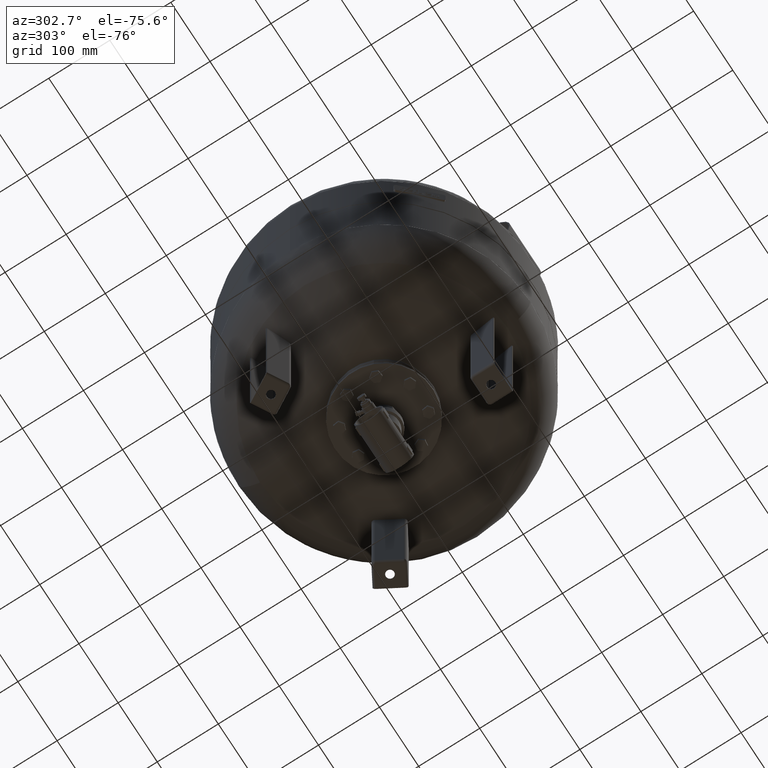
[diagram: clean part render]
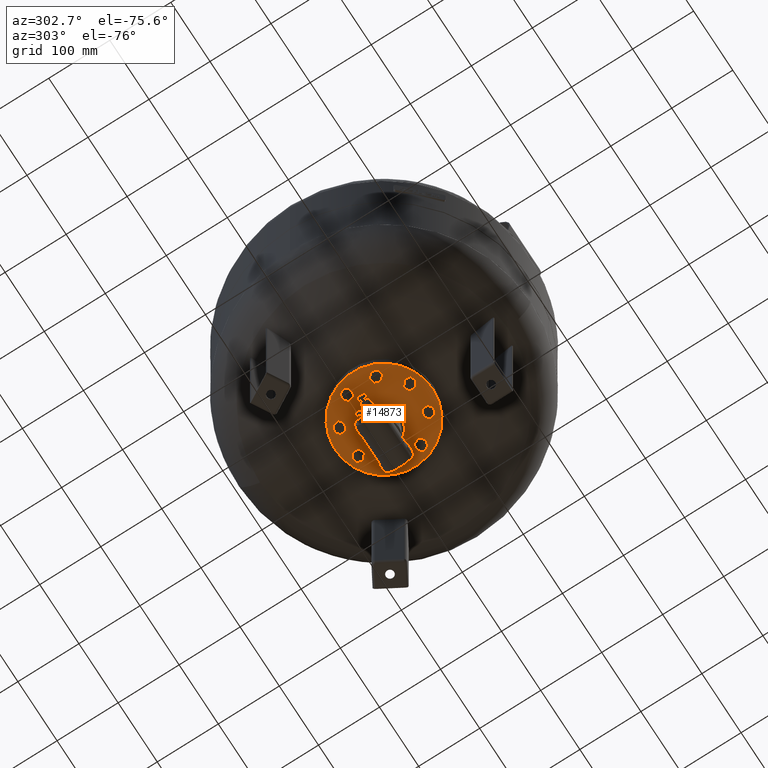
[diagram: same view with one face highlighted and labeled with its STEP entity id]
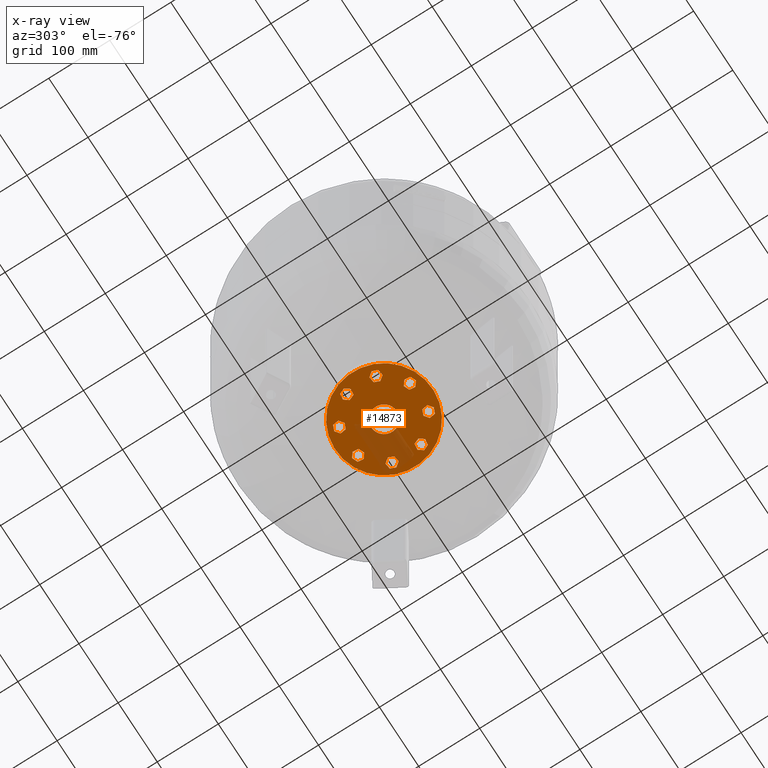
[diagram: x-ray of the same camera — body ghosted, the highlighted face saturated]
A machine part, auxiliary view. The second image highlights one B-rep face of the part: STEP entity #14873.
The next image is the same camera in x-ray: the body ghosted, the highlighted face saturated — about 16% of this face is hidden behind the body in this view.
In plain terms, the highlighted planar face has unit normal (0, 0, 1).
Its self-contained STEP definition (entity closure, byte-faithful):
#10969=CARTESIAN_POINT('',(-73.910362600902943,-30.614674589207187,177.0));
#10970=VERTEX_POINT('',#10969);
#10979=CARTESIAN_POINT('',(73.910362600902943,30.614674589207169,177.0));
#10980=VERTEX_POINT('',#10979);
#10981=CARTESIAN_POINT('',(1.874608E-015,-4.525704E-015,177.0));
#10982=DIRECTION('',(0.0,0.0,1.0));
#10983=DIRECTION('',(-0.923879532511287,-0.382683432365090,0.0));
#10984=AXIS2_PLACEMENT_3D('',#10981,#10982,#10983);
#10985=CIRCLE('',#10984,80.0);
#10986=EDGE_CURVE('',#10970,#10980,#10985,.T.);
#11013=CARTESIAN_POINT('',(-19.586246089239278,-8.112888766139911,177.0));
#11014=VERTEX_POINT('',#11013);
#11030=CARTESIAN_POINT('',(19.586246089239285,8.112888766139898,177.0));
#11031=VERTEX_POINT('',#11030);
#11038=CARTESIAN_POINT('',(1.874608E-015,-4.525704E-015,177.0));
#11039=DIRECTION('',(0.0,0.0,1.0));
#11040=DIRECTION('',(-0.923879532511287,-0.382683432365090,0.0));
#11041=AXIS2_PLACEMENT_3D('',#11038,#11039,#11040);
#11042=CIRCLE('',#11041,21.200000000000003);
#11043=EDGE_CURVE('',#11014,#11031,#11042,.T.);
#12821=CARTESIAN_POINT('',(-16.589030289543945,-52.118973583388282,177.0));
#12822=VERTEX_POINT('',#12821);
#12823=CARTESIAN_POINT('',(-25.123463838250792,-48.583895460341978,177.0));
#12824=VERTEX_POINT('',#12823);
#12825=CARTESIAN_POINT('',(-16.589030289543945,-52.118973583388282,177.0));
#12826=DIRECTION('',(-0.923879532511287,0.382683432365088,0.0));
#12827=VECTOR('',#12826,9.237604307034022);
#12828=LINE('',#12825,#12827);
#12829=EDGE_CURVE('',#12822,#12824,#12828,.T.);
#12861=CARTESIAN_POINT('',(-15.383280974111251,-61.277548905001737,177.0));
#12862=VERTEX_POINT('',#12861);
#12863=CARTESIAN_POINT('',(-15.383280974111251,-61.277548905001737,177.0));
#12864=DIRECTION('',(-0.130526192220051,0.991444861373810,0.0));
#12865=VECTOR('',#12864,9.237604307034017);
#12866=LINE('',#12863,#12865);
#12867=EDGE_CURVE('',#12862,#12822,#12866,.T.);
#12892=CARTESIAN_POINT('',(-22.711965207385386,-66.901046103568888,177.0));
#12893=VERTEX_POINT('',#12892);
#12894=CARTESIAN_POINT('',(-22.711965207385386,-66.901046103568888,177.0));
#12895=DIRECTION('',(0.793353340291235,0.608761429008721,0.0));
#12896=VECTOR('',#12895,9.237604307034021);
#12897=LINE('',#12894,#12896);
#12898=EDGE_CURVE('',#12893,#12862,#12897,.T.);
#12923=CARTESIAN_POINT('',(-31.246398756092223,-63.365967980522584,177.0));
#12924=VERTEX_POINT('',#12923);
#12925=CARTESIAN_POINT('',(-31.246398756092223,-63.365967980522584,177.0));
#12926=DIRECTION('',(0.923879532511287,-0.382683432365089,0.0));
#12927=VECTOR('',#12926,9.237604307034014);
#12928=LINE('',#12925,#12927);
#12929=EDGE_CURVE('',#12924,#12893,#12928,.T.);
#12954=CARTESIAN_POINT('',(-32.452148071524917,-54.207392658909114,177.0));
#12955=VERTEX_POINT('',#12954);
#12956=CARTESIAN_POINT('',(-25.123463838250792,-48.583895460341978,177.0));
#12957=DIRECTION('',(-0.793353340291235,-0.608761429008721,0.0));
#12958=VECTOR('',#12957,9.237604307034003);
#12959=LINE('',#12956,#12958);
#12960=EDGE_CURVE('',#12824,#12955,#12959,.T.);
#12985=CARTESIAN_POINT('',(-32.452148071524917,-54.207392658909114,177.0));
#12986=DIRECTION('',(0.130526192220051,-0.991444861373810,0.0));
#12987=VECTOR('',#12986,9.237604307034031);
#12988=LINE('',#12985,#12987);
#12989=EDGE_CURVE('',#12955,#12924,#12988,.T.);
#13067=CARTESIAN_POINT('',(25.123463838250814,-48.583895460341950,177.0));
#13068=VERTEX_POINT('',#13067);
#13069=CARTESIAN_POINT('',(16.589030289543977,-52.118973583388282,177.0));
#13070=VERTEX_POINT('',#13069);
#13071=CARTESIAN_POINT('',(25.123463838250814,-48.583895460341950,177.0));
#13072=DIRECTION('',(-0.923879532511286,-0.382683432365091,0.0));
#13073=VECTOR('',#13072,9.237604307034024);
#13074=LINE('',#13071,#13073);
#13075=EDGE_CURVE('',#13068,#13070,#13074,.T.);
#13107=CARTESIAN_POINT('',(32.452148071524945,-54.207392658909100,177.0));
#13108=VERTEX_POINT('',#13107);
#13109=CARTESIAN_POINT('',(32.452148071524945,-54.207392658909100,177.0));
#13110=DIRECTION('',(-0.793353340291235,0.608761429008722,0.0));
#13111=VECTOR('',#13110,9.237604307034017);
#13112=LINE('',#13109,#13111);
#13113=EDGE_CURVE('',#13108,#13068,#13112,.T.);
#13138=CARTESIAN_POINT('',(31.246398756092255,-63.365967980522562,177.0));
#13139=VERTEX_POINT('',#13138);
#13140=CARTESIAN_POINT('',(31.246398756092255,-63.365967980522562,177.0));
#13141=DIRECTION('',(0.130526192220051,0.991444861373811,0.0));
#13142=VECTOR('',#13141,9.237604307034022);
#13143=LINE('',#13140,#13142);
#13144=EDGE_CURVE('',#13139,#13108,#13143,.T.);
#13169=CARTESIAN_POINT('',(22.711965207385425,-66.901046103568873,177.0));
#13170=VERTEX_POINT('',#13169);
#13171=CARTESIAN_POINT('',(22.711965207385425,-66.901046103568873,177.0));
#13172=DIRECTION('',(0.923879532511287,0.382683432365090,0.0));
#13173=VECTOR('',#13172,9.237604307034010);
#13174=LINE('',#13171,#13173);
#13175=EDGE_CURVE('',#13170,#13139,#13174,.T.);
#13200=CARTESIAN_POINT('',(15.383280974111285,-61.277548905001737,177.0));
#13201=VERTEX_POINT('',#13200);
#13202=CARTESIAN_POINT('',(16.589030289543977,-52.118973583388282,177.0));
#13203=DIRECTION('',(-0.130526192220051,-0.991444861373811,0.0));
#13204=VECTOR('',#13203,9.237604307034015);
#13205=LINE('',#13202,#13204);
#13206=EDGE_CURVE('',#13070,#13201,#13205,.T.);
#13231=CARTESIAN_POINT('',(15.383280974111285,-61.277548905001737,177.0));
#13232=DIRECTION('',(0.793353340291236,-0.608761429008720,0.0));
#13233=VECTOR('',#13232,9.237604307034015);
#13234=LINE('',#13231,#13233);
#13235=EDGE_CURVE('',#13201,#13170,#13234,.T.);
#13313=CARTESIAN_POINT('',(52.118973583388282,-16.589030289543963,177.0));
#13314=VERTEX_POINT('',#13313);
#13315=CARTESIAN_POINT('',(48.583895460341971,-25.123463838250810,177.0));
#13316=VERTEX_POINT('',#13315);
#13317=CARTESIAN_POINT('',(52.118973583388282,-16.589030289543963,177.0));
#13318=DIRECTION('',(-0.382683432365089,-0.923879532511287,0.0));
#13319=VECTOR('',#13318,9.237604307034026);
#13320=LINE('',#13317,#13319);
#13321=EDGE_CURVE('',#13314,#13316,#13320,.T.);
#13353=CARTESIAN_POINT('',(61.277548905001737,-15.383280974111269,177.0));
#13354=VERTEX_POINT('',#13353);
#13355=CARTESIAN_POINT('',(61.277548905001737,-15.383280974111269,177.0));
#13356=DIRECTION('',(-0.991444861373810,-0.130526192220051,0.0));
#13357=VECTOR('',#13356,9.237604307034017);
#13358=LINE('',#13355,#13357);
#13359=EDGE_CURVE('',#13354,#13314,#13358,.T.);
#13384=CARTESIAN_POINT('',(66.901046103568888,-22.711965207385397,177.0));
#13385=VERTEX_POINT('',#13384);
#13386=CARTESIAN_POINT('',(66.901046103568888,-22.711965207385397,177.0));
#13387=DIRECTION('',(-0.608761429008722,0.793353340291234,0.0));
#13388=VECTOR('',#13387,9.237604307034015);
#13389=LINE('',#13386,#13388);
#13390=EDGE_CURVE('',#13385,#13354,#13389,.T.);
#13415=CARTESIAN_POINT('',(63.365967980522569,-31.246398756092240,177.0));
#13416=VERTEX_POINT('',#13415);
#13417=CARTESIAN_POINT('',(63.365967980522569,-31.246398756092240,177.0));
#13418=DIRECTION('',(0.382683432365090,0.923879532511287,0.0));
#13419=VECTOR('',#13418,9.237604307034026);
#13420=LINE('',#13417,#13419);
#13421=EDGE_CURVE('',#13416,#13385,#13420,.T.);
#13446=CARTESIAN_POINT('',(54.207392658909107,-32.452148071524938,177.0));
#13447=VERTEX_POINT('',#13446);
#13448=CARTESIAN_POINT('',(48.583895460341971,-25.123463838250810,177.0));
#13449=DIRECTION('',(0.608761429008721,-0.793353340291235,0.0));
#13450=VECTOR('',#13449,9.237604307034006);
#13451=LINE('',#13448,#13450);
#13452=EDGE_CURVE('',#13316,#13447,#13451,.T.);
#13477=CARTESIAN_POINT('',(54.207392658909107,-32.452148071524938,177.0));
#13478=DIRECTION('',(0.991444861373810,0.130526192220051,0.0));
#13479=VECTOR('',#13478,9.237604307034024);
#13480=LINE('',#13477,#13479);
#13481=EDGE_CURVE('',#13447,#13416,#13480,.T.);
#13559=CARTESIAN_POINT('',(48.583895460341942,25.123463838250807,177.0));
#13560=VERTEX_POINT('',#13559);
#13561=CARTESIAN_POINT('',(52.118973583388282,16.589030289543974,177.0));
#13562=VERTEX_POINT('',#13561);
#13563=CARTESIAN_POINT('',(48.583895460341942,25.123463838250807,177.0));
#13564=DIRECTION('',(0.382683432365092,-0.923879532511286,0.0));
#13565=VECTOR('',#13564,9.237604307034024);
#13566=LINE('',#13563,#13565);
#13567=EDGE_CURVE('',#13560,#13562,#13566,.T.);
#13599=CARTESIAN_POINT('',(54.207392658909100,32.452148071524938,177.0));
#13600=VERTEX_POINT('',#13599);
#13601=CARTESIAN_POINT('',(54.207392658909100,32.452148071524938,177.0));
#13602=DIRECTION('',(-0.608761429008722,-0.793353340291234,0.0));
#13603=VECTOR('',#13602,9.237604307034022);
#13604=LINE('',#13601,#13603);
#13605=EDGE_CURVE('',#13600,#13560,#13604,.T.);
#13630=CARTESIAN_POINT('',(63.365967980522562,31.246398756092251,177.0));
#13631=VERTEX_POINT('',#13630);
#13632=CARTESIAN_POINT('',(63.365967980522562,31.246398756092251,177.0));
#13633=DIRECTION('',(-0.991444861373811,0.130526192220050,0.0));
#13634=VECTOR('',#13633,9.237604307034022);
#13635=LINE('',#13632,#13634);
#13636=EDGE_CURVE('',#13631,#13600,#13635,.T.);
#13661=CARTESIAN_POINT('',(66.901046103568873,22.711965207385418,177.0));
#13662=VERTEX_POINT('',#13661);
#13663=CARTESIAN_POINT('',(66.901046103568873,22.711965207385418,177.0));
#13664=DIRECTION('',(-0.382683432365090,0.923879532511287,0.0));
#13665=VECTOR('',#13664,9.237604307034014);
#13666=LINE('',#13663,#13665);
#13667=EDGE_CURVE('',#13662,#13631,#13666,.T.);
#13692=CARTESIAN_POINT('',(61.277548905001730,15.383280974111281,177.0));
#13693=VERTEX_POINT('',#13692);
#13694=CARTESIAN_POINT('',(52.118973583388282,16.589030289543974,177.0));
#13695=DIRECTION('',(0.991444861373811,-0.130526192220051,0.0));
#13696=VECTOR('',#13695,9.237604307034008);
#13697=LINE('',#13694,#13696);
#13698=EDGE_CURVE('',#13562,#13693,#13697,.T.);
#13723=CARTESIAN_POINT('',(61.277548905001730,15.383280974111281,177.0));
#13724=DIRECTION('',(0.608761429008721,0.793353340291235,0.0));
#13725=VECTOR('',#13724,9.237604307034017);
#13726=LINE('',#13723,#13725);
#13727=EDGE_CURVE('',#13693,#13662,#13726,.T.);
#13805=CARTESIAN_POINT('',(16.589030289543960,52.118973583388261,177.0));
#13806=VERTEX_POINT('',#13805);
#13807=CARTESIAN_POINT('',(25.123463838250807,48.583895460341957,177.0));
#13808=VERTEX_POINT('',#13807);
#13809=CARTESIAN_POINT('',(16.589030289543960,52.118973583388261,177.0));
#13810=DIRECTION('',(0.923879532511287,-0.382683432365088,0.0));
#13811=VECTOR('',#13810,9.237604307034022);
#13812=LINE('',#13809,#13811);
#13813=EDGE_CURVE('',#13806,#13808,#13812,.T.);
#13845=CARTESIAN_POINT('',(15.383280974111276,61.277548905001716,177.0));
#13846=VERTEX_POINT('',#13845);
#13847=CARTESIAN_POINT('',(15.383280974111276,61.277548905001716,177.0));
#13848=DIRECTION('',(0.130526192220050,-0.991444861373811,0.0));
#13849=VECTOR('',#13848,9.237604307034015);
#13850=LINE('',#13847,#13849);
#13851=EDGE_CURVE('',#13846,#13806,#13850,.T.);
#13876=CARTESIAN_POINT('',(22.711965207385415,66.901046103568873,177.0));
#13877=VERTEX_POINT('',#13876);
#13878=CARTESIAN_POINT('',(22.711965207385415,66.901046103568873,177.0));
#13879=DIRECTION('',(-0.793353340291234,-0.608761429008722,0.0));
#13880=VECTOR('',#13879,9.237604307034028);
#13881=LINE('',#13878,#13880);
#13882=EDGE_CURVE('',#13877,#13846,#13881,.T.);
#13907=CARTESIAN_POINT('',(31.246398756092237,63.365967980522555,177.0));
#13908=VERTEX_POINT('',#13907);
#13909=CARTESIAN_POINT('',(31.246398756092237,63.365967980522555,177.0));
#13910=DIRECTION('',(-0.923879532511286,0.382683432365091,0.0));
#13911=VECTOR('',#13910,9.237604307034005);
#13912=LINE('',#13909,#13911);
#13913=EDGE_CURVE('',#13908,#13877,#13912,.T.);
#13938=CARTESIAN_POINT('',(32.452148071524945,54.207392658909100,177.0));
#13939=VERTEX_POINT('',#13938);
#13940=CARTESIAN_POINT('',(25.123463838250807,48.583895460341957,177.0));
#13941=DIRECTION('',(0.793353340291235,0.608761429008721,0.0));
#13942=VECTOR('',#13941,9.237604307034019);
#13943=LINE('',#13940,#13942);
#13944=EDGE_CURVE('',#13808,#13939,#13943,.T.);
#13969=CARTESIAN_POINT('',(32.452148071524945,54.207392658909100,177.0));
#13970=DIRECTION('',(-0.130526192220053,0.991444861373810,0.0));
#13971=VECTOR('',#13970,9.237604307034019);
#13972=LINE('',#13969,#13971);
#13973=EDGE_CURVE('',#13939,#13908,#13972,.T.);
#14051=CARTESIAN_POINT('',(-25.123463838250810,48.583895460341950,177.0));
#14052=VERTEX_POINT('',#14051);
#14053=CARTESIAN_POINT('',(-16.589030289543963,52.118973583388275,177.0));
#14054=VERTEX_POINT('',#14053);
#14055=CARTESIAN_POINT('',(-25.123463838250810,48.583895460341950,177.0));
#14056=DIRECTION('',(0.923879532511286,0.382683432365090,0.0));
#14057=VECTOR('',#14056,9.237604307034031);
#14058=LINE('',#14055,#14057);
#14059=EDGE_CURVE('',#14052,#14054,#14058,.T.);
#14091=CARTESIAN_POINT('',(-32.452148071524945,54.207392658909093,177.0));
#14092=VERTEX_POINT('',#14091);
#14093=CARTESIAN_POINT('',(-32.452148071524945,54.207392658909093,177.0));
#14094=DIRECTION('',(0.793353340291235,-0.608761429008721,0.0));
#14095=VECTOR('',#14094,9.237604307034015);
#14096=LINE('',#14093,#14095);
#14097=EDGE_CURVE('',#14092,#14052,#14096,.T.);
#14122=CARTESIAN_POINT('',(-31.246398756092244,63.365967980522569,177.0));
#14123=VERTEX_POINT('',#14122);
#14124=CARTESIAN_POINT('',(-31.246398756092244,63.365967980522569,177.0));
#14125=DIRECTION('',(-0.130526192220052,-0.991444861373810,0.0));
#14126=VECTOR('',#14125,9.237604307034038);
#14127=LINE('',#14124,#14126);
#14128=EDGE_CURVE('',#14123,#14092,#14127,.T.);
#14153=CARTESIAN_POINT('',(-22.711965207385415,66.901046103568873,177.0));
#14154=VERTEX_POINT('',#14153);
#14155=CARTESIAN_POINT('',(-22.711965207385415,66.901046103568873,177.0));
#14156=DIRECTION('',(-0.923879532511287,-0.382683432365089,0.0));
#14157=VECTOR('',#14156,9.237604307034006);
#14158=LINE('',#14155,#14157);
#14159=EDGE_CURVE('',#14154,#14123,#14158,.T.);
#14184=CARTESIAN_POINT('',(-15.383280974111271,61.277548905001723,177.0));
#14185=VERTEX_POINT('',#14184);
#14186=CARTESIAN_POINT('',(-16.589030289543963,52.118973583388275,177.0));
#14187=DIRECTION('',(0.130526192220051,0.991444861373811,0.0));
#14188=VECTOR('',#14187,9.237604307034008);
#14189=LINE('',#14186,#14188);
#14190=EDGE_CURVE('',#14054,#14185,#14189,.T.);
#14215=CARTESIAN_POINT('',(-15.383280974111271,61.277548905001723,177.0));
#14216=DIRECTION('',(-0.793353340291235,0.608761429008721,0.0));
#14217=VECTOR('',#14216,9.237604307034028);
#14218=LINE('',#14215,#14217);
#14219=EDGE_CURVE('',#14185,#14154,#14218,.T.);
#14297=CARTESIAN_POINT('',(-52.118973583388268,16.589030289543949,177.0));
#14298=VERTEX_POINT('',#14297);
#14299=CARTESIAN_POINT('',(-48.583895460341964,25.123463838250800,177.0));
#14300=VERTEX_POINT('',#14299);
#14301=CARTESIAN_POINT('',(-52.118973583388268,16.589030289543949,177.0));
#14302=DIRECTION('',(0.382683432365088,0.923879532511287,0.0));
#14303=VECTOR('',#14302,9.237604307034026);
#14304=LINE('',#14301,#14303);
#14305=EDGE_CURVE('',#14298,#14300,#14304,.T.);
#14337=CARTESIAN_POINT('',(-61.277548905001716,15.383280974111265,177.0));
#14338=VERTEX_POINT('',#14337);
#14339=CARTESIAN_POINT('',(-61.277548905001716,15.383280974111265,177.0));
#14340=DIRECTION('',(0.991444861373811,0.130526192220050,0.0));
#14341=VECTOR('',#14340,9.237604307034008);
#14342=LINE('',#14339,#14341);
#14343=EDGE_CURVE('',#14338,#14298,#14342,.T.);
#14368=CARTESIAN_POINT('',(-66.901046103568873,22.711965207385404,177.0));
#14369=VERTEX_POINT('',#14368);
#14370=CARTESIAN_POINT('',(-66.901046103568873,22.711965207385404,177.0));
#14371=DIRECTION('',(0.608761429008722,-0.793353340291234,0.0));
#14372=VECTOR('',#14371,9.237604307034028);
#14373=LINE('',#14370,#14372);
#14374=EDGE_CURVE('',#14369,#14338,#14373,.T.);
#14399=CARTESIAN_POINT('',(-63.365967980522569,31.246398756092226,177.0));
#14400=VERTEX_POINT('',#14399);
#14401=CARTESIAN_POINT('',(-63.365967980522569,31.246398756092226,177.0));
#14402=DIRECTION('',(-0.382683432365089,-0.923879532511287,0.0));
#14403=VECTOR('',#14402,9.237604307033999);
#14404=LINE('',#14401,#14403);
#14405=EDGE_CURVE('',#14400,#14369,#14404,.T.);
#14430=CARTESIAN_POINT('',(-54.207392658909107,32.452148071524938,177.0));
#14431=VERTEX_POINT('',#14430);
#14432=CARTESIAN_POINT('',(-48.583895460341964,25.123463838250800,177.0));
#14433=DIRECTION('',(-0.608761429008721,0.793353340291235,0.0));
#14434=VECTOR('',#14433,9.237604307034019);
#14435=LINE('',#14432,#14434);
#14436=EDGE_CURVE('',#14300,#14431,#14435,.T.);
#14461=CARTESIAN_POINT('',(-54.207392658909107,32.452148071524938,177.0));
#14462=DIRECTION('',(-0.991444861373810,-0.130526192220053,0.0));
#14463=VECTOR('',#14462,9.237604307034026);
#14464=LINE('',#14461,#14463);
#14465=EDGE_CURVE('',#14431,#14400,#14464,.T.);
#14543=CARTESIAN_POINT('',(-48.583895460341957,-25.123463838250817,177.0));
#14544=VERTEX_POINT('',#14543);
#14545=CARTESIAN_POINT('',(-52.118973583388282,-16.589030289543970,177.0));
#14546=VERTEX_POINT('',#14545);
#14547=CARTESIAN_POINT('',(-48.583895460341957,-25.123463838250817,177.0));
#14548=DIRECTION('',(-0.382683432365090,0.923879532511286,0.0));
#14549=VECTOR('',#14548,9.237604307034031);
#14550=LINE('',#14547,#14549);
#14551=EDGE_CURVE('',#14544,#14546,#14550,.T.);
#14583=CARTESIAN_POINT('',(-54.207392658909093,-32.452148071524945,177.0));
#14584=VERTEX_POINT('',#14583);
#14585=CARTESIAN_POINT('',(-54.207392658909093,-32.452148071524945,177.0));
#14586=DIRECTION('',(0.608761429008721,0.793353340291235,0.0));
#14587=VECTOR('',#14586,9.237604307034006);
#14588=LINE('',#14585,#14587);
#14589=EDGE_CURVE('',#14584,#14544,#14588,.T.);
#14614=CARTESIAN_POINT('',(-63.365967980522562,-31.246398756092255,177.0));
#14615=VERTEX_POINT('',#14614);
#14616=CARTESIAN_POINT('',(-63.365967980522562,-31.246398756092255,177.0));
#14617=DIRECTION('',(0.991444861373811,-0.130526192220051,0.0));
#14618=VECTOR('',#14617,9.237604307034030);
#14619=LINE('',#14616,#14618);
#14620=EDGE_CURVE('',#14615,#14584,#14619,.T.);
#14645=CARTESIAN_POINT('',(-66.901046103568873,-22.711965207385415,177.0));
#14646=VERTEX_POINT('',#14645);
#14647=CARTESIAN_POINT('',(-66.901046103568873,-22.711965207385415,177.0));
#14648=DIRECTION('',(0.382683432365089,-0.923879532511287,0.0));
#14649=VECTOR('',#14648,9.237604307034019);
#14650=LINE('',#14647,#14649);
#14651=EDGE_CURVE('',#14646,#14615,#14650,.T.);
#14676=CARTESIAN_POINT('',(-61.277548905001730,-15.383280974111283,177.0));
#14677=VERTEX_POINT('',#14676);
#14678=CARTESIAN_POINT('',(-52.118973583388282,-16.589030289543970,177.0));
#14679=DIRECTION('',(-0.991444861373811,0.130526192220050,0.0));
#14680=VECTOR('',#14679,9.237604307034008);
#14681=LINE('',#14678,#14680);
#14682=EDGE_CURVE('',#14546,#14677,#14681,.T.);
#14707=CARTESIAN_POINT('',(-61.277548905001730,-15.383280974111283,177.0));
#14708=DIRECTION('',(-0.608761429008721,-0.793353340291235,0.0));
#14709=VECTOR('',#14708,9.237604307034014);
#14710=LINE('',#14707,#14709);
#14711=EDGE_CURVE('',#14677,#14646,#14710,.T.);
#14744=CARTESIAN_POINT('',(1.874608E-015,-4.525704E-015,177.0));
#14745=DIRECTION('',(0.0,0.0,1.0));
#14746=DIRECTION('',(-0.923879532511287,-0.382683432365090,0.0));
#14747=AXIS2_PLACEMENT_3D('',#14744,#14745,#14746);
#14748=CIRCLE('',#14747,21.200000000000003);
#14749=EDGE_CURVE('',#11031,#11014,#14748,.T.);
#14786=CARTESIAN_POINT('',(1.874608E-015,-4.525704E-015,177.0));
#14787=DIRECTION('',(0.0,0.0,1.0));
#14788=DIRECTION('',(-0.923879532511287,-0.382683432365090,0.0));
#14789=AXIS2_PLACEMENT_3D('',#14786,#14787,#14788);
#14790=CIRCLE('',#14789,80.0);
#14791=EDGE_CURVE('',#10980,#10970,#14790,.T.);
#14796=CARTESIAN_POINT('',(1.874608E-015,-4.525704E-015,177.0));
#14797=DIRECTION('',(0.0,0.0,1.0));
#14798=DIRECTION('',(-0.923879532511287,-0.382683432365090,0.0));
#14799=AXIS2_PLACEMENT_3D('',#14796,#14797,#14798);
#14800=PLANE('',#14799);
#14801=ORIENTED_EDGE('',*,*,#14791,.F.);
#14802=ORIENTED_EDGE('',*,*,#10986,.F.);
#14803=EDGE_LOOP('',(#14801,#14802));
#14804=FACE_OUTER_BOUND('',#14803,.T.);
#14805=ORIENTED_EDGE('',*,*,#12829,.T.);
#14806=ORIENTED_EDGE('',*,*,#12960,.T.);
#14807=ORIENTED_EDGE('',*,*,#12989,.T.);
#14808=ORIENTED_EDGE('',*,*,#12929,.T.);
#14809=ORIENTED_EDGE('',*,*,#12898,.T.);
#14810=ORIENTED_EDGE('',*,*,#12867,.T.);
#14811=EDGE_LOOP('',(#14805,#14806,#14807,#14808,#14809,#14810));
#14812=FACE_BOUND('',#14811,.T.);
#14813=ORIENTED_EDGE('',*,*,#13075,.T.);
#14814=ORIENTED_EDGE('',*,*,#13206,.T.);
#14815=ORIENTED_EDGE('',*,*,#13235,.T.);
#14816=ORIENTED_EDGE('',*,*,#13175,.T.);
#14817=ORIENTED_EDGE('',*,*,#13144,.T.);
#14818=ORIENTED_EDGE('',*,*,#13113,.T.);
#14819=EDGE_LOOP('',(#14813,#14814,#14815,#14816,#14817,#14818));
#14820=FACE_BOUND('',#14819,.T.);
#14821=ORIENTED_EDGE('',*,*,#13321,.T.);
#14822=ORIENTED_EDGE('',*,*,#13452,.T.);
#14823=ORIENTED_EDGE('',*,*,#13481,.T.);
#14824=ORIENTED_EDGE('',*,*,#13421,.T.);
#14825=ORIENTED_EDGE('',*,*,#13390,.T.);
#14826=ORIENTED_EDGE('',*,*,#13359,.T.);
#14827=EDGE_LOOP('',(#14821,#14822,#14823,#14824,#14825,#14826));
#14828=FACE_BOUND('',#14827,.T.);
#14829=ORIENTED_EDGE('',*,*,#13567,.T.);
#14830=ORIENTED_EDGE('',*,*,#13698,.T.);
#14831=ORIENTED_EDGE('',*,*,#13727,.T.);
#14832=ORIENTED_EDGE('',*,*,#13667,.T.);
#14833=ORIENTED_EDGE('',*,*,#13636,.T.);
#14834=ORIENTED_EDGE('',*,*,#13605,.T.);
#14835=EDGE_LOOP('',(#14829,#14830,#14831,#14832,#14833,#14834));
#14836=FACE_BOUND('',#14835,.T.);
#14837=ORIENTED_EDGE('',*,*,#13813,.T.);
#14838=ORIENTED_EDGE('',*,*,#13944,.T.);
#14839=ORIENTED_EDGE('',*,*,#13973,.T.);
#14840=ORIENTED_EDGE('',*,*,#13913,.T.);
#14841=ORIENTED_EDGE('',*,*,#13882,.T.);
#14842=ORIENTED_EDGE('',*,*,#13851,.T.);
#14843=EDGE_LOOP('',(#14837,#14838,#14839,#14840,#14841,#14842));
#14844=FACE_BOUND('',#14843,.T.);
#14845=ORIENTED_EDGE('',*,*,#14059,.T.);
#14846=ORIENTED_EDGE('',*,*,#14190,.T.);
#14847=ORIENTED_EDGE('',*,*,#14219,.T.);
#14848=ORIENTED_EDGE('',*,*,#14159,.T.);
#14849=ORIENTED_EDGE('',*,*,#14128,.T.);
#14850=ORIENTED_EDGE('',*,*,#14097,.T.);
#14851=EDGE_LOOP('',(#14845,#14846,#14847,#14848,#14849,#14850));
#14852=FACE_BOUND('',#14851,.T.);
#14853=ORIENTED_EDGE('',*,*,#14305,.T.);
#14854=ORIENTED_EDGE('',*,*,#14436,.T.);
#14855=ORIENTED_EDGE('',*,*,#14465,.T.);
#14856=ORIENTED_EDGE('',*,*,#14405,.T.);
#14857=ORIENTED_EDGE('',*,*,#14374,.T.);
#14858=ORIENTED_EDGE('',*,*,#14343,.T.);
#14859=EDGE_LOOP('',(#14853,#14854,#14855,#14856,#14857,#14858));
#14860=FACE_BOUND('',#14859,.T.);
#14861=ORIENTED_EDGE('',*,*,#14551,.T.);
#14862=ORIENTED_EDGE('',*,*,#14682,.T.);
#14863=ORIENTED_EDGE('',*,*,#14711,.T.);
#14864=ORIENTED_EDGE('',*,*,#14651,.T.);
#14865=ORIENTED_EDGE('',*,*,#14620,.T.);
#14866=ORIENTED_EDGE('',*,*,#14589,.T.);
#14867=EDGE_LOOP('',(#14861,#14862,#14863,#14864,#14865,#14866));
#14868=FACE_BOUND('',#14867,.T.);
#14869=ORIENTED_EDGE('',*,*,#14749,.T.);
#14870=ORIENTED_EDGE('',*,*,#11043,.T.);
#14871=EDGE_LOOP('',(#14869,#14870));
#14872=FACE_BOUND('',#14871,.T.);
#14873=ADVANCED_FACE('',(#14804,#14812,#14820,#14828,#14836,#14844,#14852,#14860,#14868,#14872),#14800,.F.);